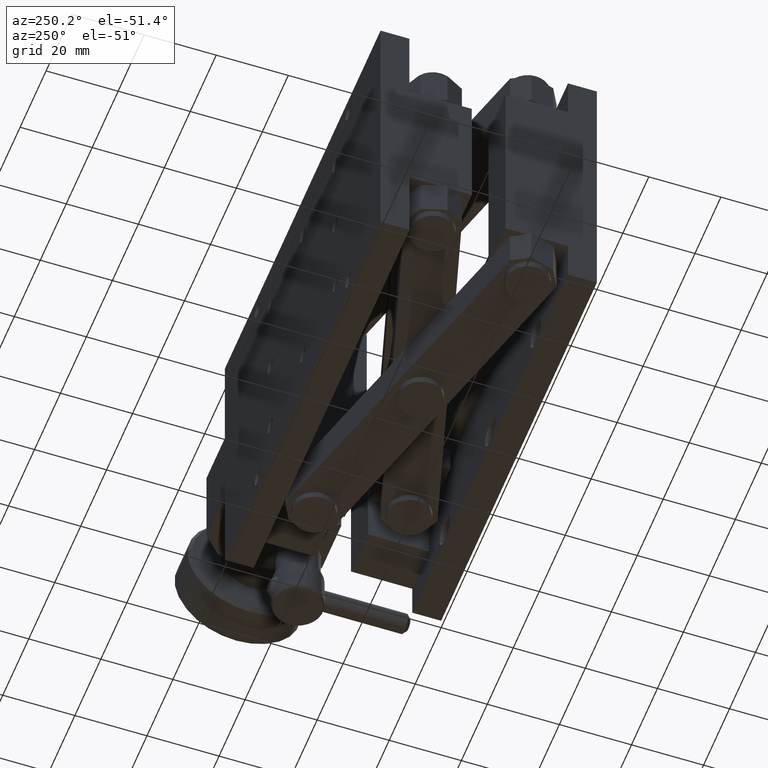
[diagram: clean part render]
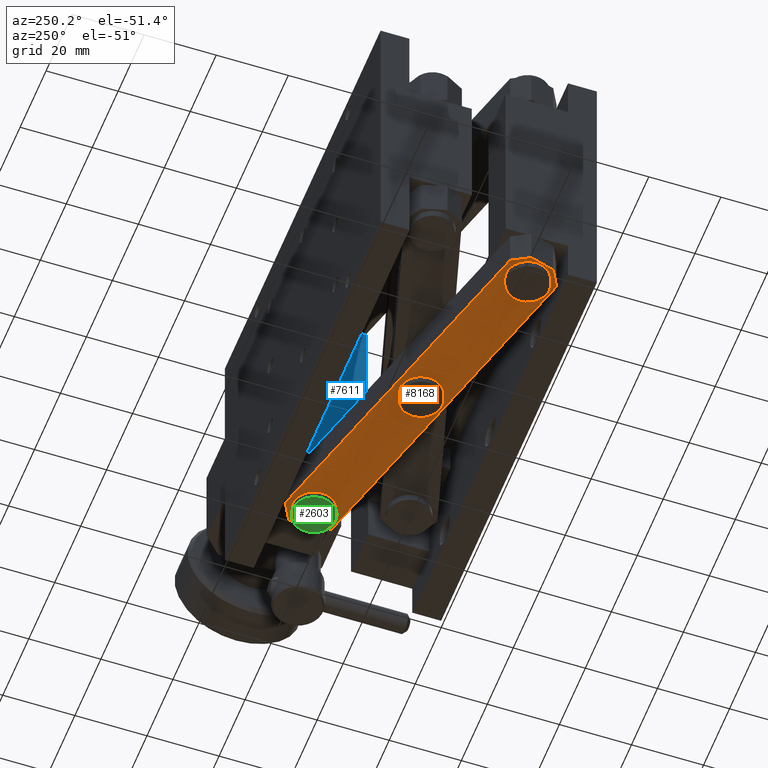
[diagram: same view with three faces highlighted in distinct colors, each labeled with its STEP entity id]
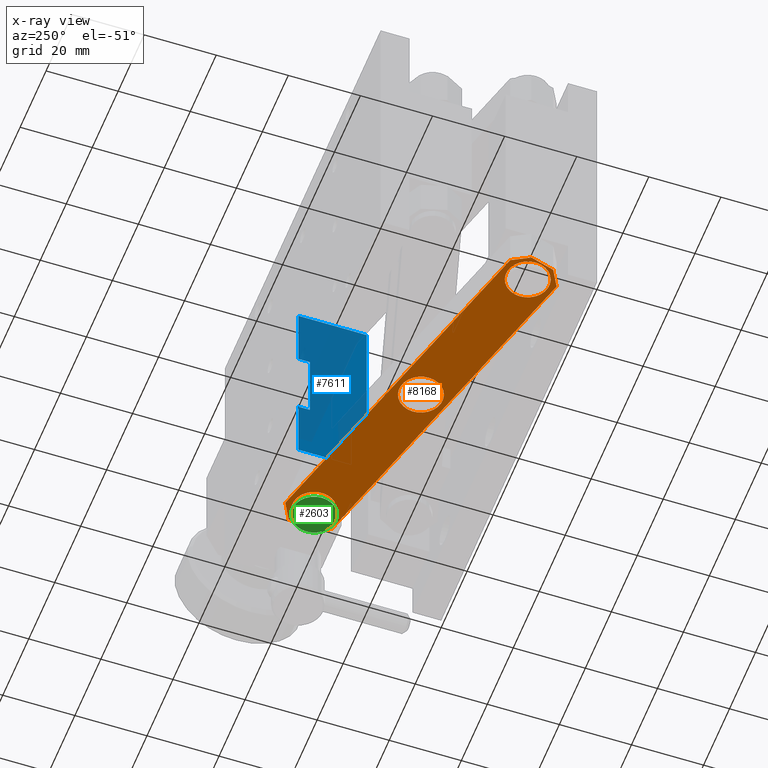
[diagram: x-ray of the same camera — body ghosted, the three highlighted faces saturated]
A machine part, auxiliary view with three faces highlighted in distinct colors.
The next image is the same camera in x-ray (body ghosted, the three faces saturated) — at least one of them is partly hidden behind the body in this view.
Their STEP definitions:

[orange] entity #8168 — the highlighted planar face has unit normal (0, 0, -1).
#65 = EDGE_CURVE ( 'NONE', #6038, #6552, #2861, .T. ) ;
#73 = DIRECTION ( 'NONE',  ( -0.8756970255360277955, 0.4828609732286854861, -0.000000000000000000 ) ) ;
#150 = DIRECTION ( 'NONE',  ( 0.9606455735617540626, 0.2777770364810749348, 0.000000000000000000 ) ) ;
#392 = VERTEX_POINT ( 'NONE', #5794 ) ;
#507 = EDGE_LOOP ( 'NONE', ( #4557, #8715 ) ) ;
#524 = CARTESIAN_POINT ( 'NONE',  ( 98.21804147160581522, 51.09921394007719186, -38.00000000000000000 ) ) ;
#639 = AXIS2_PLACEMENT_3D ( 'NONE', #3163, #8033, #2470 ) ;
#748 = DIRECTION ( 'NONE',  ( 0.9606455735617540626, 0.2777770364810750459, 0.000000000000000000 ) ) ;
#853 = ORIENTED_EDGE ( 'NONE', *, *, #2366, .F. ) ;
#925 = LINE ( 'NONE', #7113, #7861 ) ;
#1115 = CIRCLE ( 'NONE', #6676, 6.000000000000001776 ) ;
#1128 = ORIENTED_EDGE ( 'NONE', *, *, #3370, .F. ) ;
#1181 = EDGE_CURVE ( 'NONE', #1751, #4555, #7410, .T. ) ;
#1211 = CARTESIAN_POINT ( 'NONE',  ( 97.89975531130950515, 43.19992954716135358, -38.00000000000000000 ) ) ;
#1231 = CIRCLE ( 'NONE', #6339, 6.000000000000001776 ) ;
#1398 = VERTEX_POINT ( 'NONE', #5003 ) ;
#1454 = CARTESIAN_POINT ( 'NONE',  ( 2.115058292487953295, 23.31039921051045027, -38.00000000000000000 ) ) ;
#1458 = ORIENTED_EDGE ( 'NONE', *, *, #4120, .T. ) ;
#1564 = EDGE_LOOP ( 'NONE', ( #7136, #1458, #2040, #5474, #6852, #5024, #8167, #3234 ) ) ;
#1694 = AXIS2_PLACEMENT_3D ( 'NONE', #1211, #7115, #150 ) ;
#1724 = EDGE_LOOP ( 'NONE', ( #6811, #853 ) ) ;
#1751 = VERTEX_POINT ( 'NONE', #6371 ) ;
#1841 = VERTEX_POINT ( 'NONE', #8386 ) ;
#1926 = EDGE_CURVE ( 'NONE', #6780, #7243, #3649, .T. ) ;
#1996 = EDGE_CURVE ( 'NONE', #6026, #8983, #9004, .T. ) ;
#2040 = ORIENTED_EDGE ( 'NONE', *, *, #1926, .T. ) ;
#2082 = VECTOR ( 'NONE', #6766, 1000.000000000000114 ) ;
#2118 = FACE_BOUND ( 'NONE', #5535, .T. ) ;
#2180 = CARTESIAN_POINT ( 'NONE',  ( 103.1717319117771297, 48.36773979175448090, -38.00000000000000000 ) ) ;
#2251 = VECTOR ( 'NONE', #7614, 1000.000000000000114 ) ;
#2299 = FACE_OUTER_BOUND ( 'NONE', #1564, .T. ) ;
#2311 = DIRECTION ( 'NONE',  ( 0.000000000000000000, 0.000000000000000000, -1.000000000000000000 ) ) ;
#2366 = EDGE_CURVE ( 'NONE', #2703, #1398, #2851, .T. ) ;
#2470 = DIRECTION ( 'NONE',  ( 0.9606455735617540626, 0.2777770364810750459, 0.000000000000000000 ) ) ;
#2506 = DIRECTION ( 'NONE',  ( 0.000000000000000000, 0.000000000000000000, -1.000000000000000000 ) ) ;
#2559 = DIRECTION ( 'NONE',  ( 0.9606455735617540626, 0.2777770364810749348, 0.000000000000000000 ) ) ;
#2657 = LINE ( 'NONE', #524, #2251 ) ;
#2703 = VERTEX_POINT ( 'NONE', #3361 ) ;
#2817 = DIRECTION ( 'NONE',  ( 0.9606455735617540626, 0.2777770364810750459, 0.000000000000000000 ) ) ;
#2851 = CIRCLE ( 'NONE', #6222, 6.000000000000001776 ) ;
#2861 = LINE ( 'NONE', #3778, #5945 ) ;
#2985 = FACE_BOUND ( 'NONE', #1724, .T. ) ;
#3126 = VECTOR ( 'NONE', #6454, 1000.000000000000114 ) ;
#3127 = EDGE_CURVE ( 'NONE', #1841, #392, #5798, .T. ) ;
#3163 = CARTESIAN_POINT ( 'NONE',  ( 6.600000000000400213, 16.79999999999999005, -38.00000000000000000 ) ) ;
#3234 = ORIENTED_EDGE ( 'NONE', *, *, #8763, .T. ) ;
#3295 = CARTESIAN_POINT ( 'NONE',  ( 97.89975531130950515, 43.19992954716135358, -38.00000000000000000 ) ) ;
#3361 = CARTESIAN_POINT ( 'NONE',  ( 58.01375109702547661, 31.66662699246711909, -38.00000000000000000 ) ) ;
#3370 = EDGE_CURVE ( 'NONE', #392, #1841, #1115, .T. ) ;
#3524 = EDGE_CURVE ( 'NONE', #7167, #1751, #6272, .T. ) ;
#3599 = CARTESIAN_POINT ( 'NONE',  ( 6.281713839704078595, 8.900715607084144665, -38.00000000000000000 ) ) ;
#3649 = LINE ( 'NONE', #7183, #3126 ) ;
#3729 = CARTESIAN_POINT ( 'NONE',  ( 2.115058292487953295, 23.31039921051045027, -38.00000000000000000 ) ) ;
#3778 = CARTESIAN_POINT ( 'NONE',  ( 6.281713839704078595, 8.900715607084144665, -38.00000000000000000 ) ) ;
#3798 = CARTESIAN_POINT ( 'NONE',  ( 12.36387344137092370, 18.46666221888643733, -38.00000000000000000 ) ) ;
#4015 = VECTOR ( 'NONE', #2817, 1000.000000000000114 ) ;
#4120 = EDGE_CURVE ( 'NONE', #6552, #6780, #925, .T. ) ;
#4418 = DIRECTION ( 'NONE',  ( 0.000000000000000000, 0.000000000000000000, -1.000000000000000000 ) ) ;
#4555 = VERTEX_POINT ( 'NONE', #7184 ) ;
#4557 = ORIENTED_EDGE ( 'NONE', *, *, #6918, .F. ) ;
#4681 = DIRECTION ( 'NONE',  ( -0.9606455735617540626, -0.2777770364810750459, 0.000000000000000000 ) ) ;
#4849 = CARTESIAN_POINT ( 'NONE',  ( 103.1717319117771297, 48.36773979175448090, -38.00000000000000000 ) ) ;
#5003 = CARTESIAN_POINT ( 'NONE',  ( 46.48600421428442075, 28.33330255469421743, -38.00000000000000000 ) ) ;
#5024 = ORIENTED_EDGE ( 'NONE', *, *, #3524, .T. ) ;
#5039 = CIRCLE ( 'NONE', #639, 5.999999999999999112 ) ;
#5107 = PLANE ( 'NONE',  #8126 ) ;
#5309 = DIRECTION ( 'NONE',  ( 0.9606455735617540626, 0.2777770364810750459, 0.000000000000000000 ) ) ;
#5474 = ORIENTED_EDGE ( 'NONE', *, *, #7588, .T. ) ;
#5519 = VERTEX_POINT ( 'NONE', #5937 ) ;
#5535 = EDGE_LOOP ( 'NONE', ( #1128, #8164 ) ) ;
#5794 = CARTESIAN_POINT ( 'NONE',  ( 92.13588186993898432, 41.53326732827490275, -38.00000000000000000 ) ) ;
#5796 = FACE_BOUND ( 'NONE', #507, .T. ) ;
#5798 = CIRCLE ( 'NONE', #1694, 6.000000000000001776 ) ;
#5882 = CARTESIAN_POINT ( 'NONE',  ( 1.328023399532762605, 11.63218975540685918, -38.00000000000000000 ) ) ;
#5937 = CARTESIAN_POINT ( 'NONE',  ( 98.21804147160581522, 51.09921394007719186, -38.00000000000000000 ) ) ;
#5945 = VECTOR ( 'NONE', #73, 1000.000000000000114 ) ;
#6026 = VERTEX_POINT ( 'NONE', #3798 ) ;
#6038 = VERTEX_POINT ( 'NONE', #3599 ) ;
#6222 = AXIS2_PLACEMENT_3D ( 'NONE', #8503, #2311, #8642 ) ;
#6272 = LINE ( 'NONE', #4849, #7414 ) ;
#6339 = AXIS2_PLACEMENT_3D ( 'NONE', #7261, #7734, #6954 ) ;
#6371 = CARTESIAN_POINT ( 'NONE',  ( 105.1161711671446568, 41.64322077682220424, -38.00000000000000000 ) ) ;
#6413 = DIRECTION ( 'NONE',  ( 0.000000000000000000, 0.000000000000000000, -1.000000000000000000 ) ) ;
#6454 = DIRECTION ( 'NONE',  ( 0.4828609732286854861, 0.8756970255360277955, 0.000000000000000000 ) ) ;
#6552 = VERTEX_POINT ( 'NONE', #5882 ) ;
#6676 = AXIS2_PLACEMENT_3D ( 'NONE', #3295, #2506, #2559 ) ;
#6766 = DIRECTION ( 'NONE',  ( -0.4828609732286860967, -0.8756970255360275734, 0.000000000000000000 ) ) ;
#6780 = VERTEX_POINT ( 'NONE', #7802 ) ;
#6811 = ORIENTED_EDGE ( 'NONE', *, *, #7597, .F. ) ;
#6852 = ORIENTED_EDGE ( 'NONE', *, *, #8333, .T. ) ;
#6873 = LINE ( 'NONE', #8301, #7319 ) ;
#6918 = EDGE_CURVE ( 'NONE', #8983, #6026, #5039, .T. ) ;
#6954 = DIRECTION ( 'NONE',  ( 0.9606455735617540626, 0.2777770364810749348, 0.000000000000000000 ) ) ;
#7100 = CARTESIAN_POINT ( 'NONE',  ( 6.600000000000400213, 16.79999999999999005, -38.00000000000000000 ) ) ;
#7113 = CARTESIAN_POINT ( 'NONE',  ( 1.328023399532762605, 11.63218975540685918, -38.00000000000000000 ) ) ;
#7115 = DIRECTION ( 'NONE',  ( 0.000000000000000000, 0.000000000000000000, -1.000000000000000000 ) ) ;
#7136 = ORIENTED_EDGE ( 'NONE', *, *, #65, .T. ) ;
#7167 = VERTEX_POINT ( 'NONE', #2180 ) ;
#7180 = CARTESIAN_POINT ( 'NONE',  ( 0.8361265586298753938, 15.13333778111353922, -38.00000000000000000 ) ) ;
#7183 = CARTESIAN_POINT ( 'NONE',  ( -0.6164158558347624384, 18.35670877033913939, -38.00000000000000000 ) ) ;
#7184 = CARTESIAN_POINT ( 'NONE',  ( 102.3846970188219387, 36.68953033665088270, -38.00000000000000000 ) ) ;
#7243 = VERTEX_POINT ( 'NONE', #1454 ) ;
#7261 = CARTESIAN_POINT ( 'NONE',  ( 52.24987765565494868, 29.99996477358066826, -38.00000000000000000 ) ) ;
#7319 = VECTOR ( 'NONE', #4681, 1000.000000000000114 ) ;
#7410 = LINE ( 'NONE', #7965, #2082 ) ;
#7414 = VECTOR ( 'NONE', #9029, 1000.000000000000114 ) ;
#7588 = EDGE_CURVE ( 'NONE', #7243, #5519, #8589, .T. ) ;
#7597 = EDGE_CURVE ( 'NONE', #1398, #2703, #1231, .T. ) ;
#7614 = DIRECTION ( 'NONE',  ( 0.8756970255360281286, -0.4828609732286849310, 0.000000000000000000 ) ) ;
#7734 = DIRECTION ( 'NONE',  ( 0.000000000000000000, 0.000000000000000000, -1.000000000000000000 ) ) ;
#7802 = CARTESIAN_POINT ( 'NONE',  ( -0.6164158558347624384, 18.35670877033913939, -38.00000000000000000 ) ) ;
#7861 = VECTOR ( 'NONE', #8622, 1000.000000000000114 ) ;
#7902 = CARTESIAN_POINT ( 'NONE',  ( 0.3558037718489999723, 14.99444926287299928, -38.00000000000000000 ) ) ;
#7965 = CARTESIAN_POINT ( 'NONE',  ( 105.1161711671446568, 41.64322077682220424, -38.00000000000000000 ) ) ;
#8033 = DIRECTION ( 'NONE',  ( 0.000000000000000000, 0.000000000000000000, -1.000000000000000000 ) ) ;
#8126 = AXIS2_PLACEMENT_3D ( 'NONE', #7902, #4418, #748 ) ;
#8127 = AXIS2_PLACEMENT_3D ( 'NONE', #7100, #6413, #5309 ) ;
#8164 = ORIENTED_EDGE ( 'NONE', *, *, #3127, .F. ) ;
#8167 = ORIENTED_EDGE ( 'NONE', *, *, #1181, .T. ) ;
#8168 = ADVANCED_FACE ( 'NONE', ( #2118, #2985, #5796, #2299 ), #5107, .T. ) ;
#8301 = CARTESIAN_POINT ( 'NONE',  ( 102.3846970188219387, 36.68953033665088270, -38.00000000000000000 ) ) ;
#8333 = EDGE_CURVE ( 'NONE', #5519, #7167, #2657, .T. ) ;
#8386 = CARTESIAN_POINT ( 'NONE',  ( 103.6636287526800402, 44.86659176604780441, -38.00000000000000000 ) ) ;
#8503 = CARTESIAN_POINT ( 'NONE',  ( 52.24987765565494868, 29.99996477358066826, -38.00000000000000000 ) ) ;
#8589 = LINE ( 'NONE', #3729, #4015 ) ;
#8622 = DIRECTION ( 'NONE',  ( -0.2777770364810750459, 0.9606455735617540626, 0.000000000000000000 ) ) ;
#8642 = DIRECTION ( 'NONE',  ( 0.9606455735617540626, 0.2777770364810749348, 0.000000000000000000 ) ) ;
#8715 = ORIENTED_EDGE ( 'NONE', *, *, #1996, .F. ) ;
#8763 = EDGE_CURVE ( 'NONE', #4555, #6038, #6873, .T. ) ;
#8983 = VERTEX_POINT ( 'NONE', #7180 ) ;
#9004 = CIRCLE ( 'NONE', #8127, 5.999999999999999112 ) ;
#9029 = DIRECTION ( 'NONE',  ( 0.2777770364810750459, -0.9606455735617540626, 0.000000000000000000 ) ) ;

[blue] entity #7611 — the highlighted planar face has unit normal (1, 0, 0).
#25 = EDGE_CURVE ( 'NONE', #661, #610, #2899, .T. ) ;
#32 = CARTESIAN_POINT ( 'NONE',  ( 87.90000000000000568, 47.99992954716100257, -10.00000000000000000 ) ) ;
#118 = LINE ( 'NONE', #5711, #4575 ) ;
#144 = EDGE_CURVE ( 'NONE', #1302, #996, #4613, .T. ) ;
#610 = VERTEX_POINT ( 'NONE', #3171 ) ;
#661 = VERTEX_POINT ( 'NONE', #1972 ) ;
#745 = ORIENTED_EDGE ( 'NONE', *, *, #5074, .F. ) ;
#798 = EDGE_CURVE ( 'NONE', #5462, #661, #3308, .T. ) ;
#965 = CARTESIAN_POINT ( 'NONE',  ( 87.90000000000000568, 47.99992954716100257, -10.00000000000000000 ) ) ;
#982 = FACE_OUTER_BOUND ( 'NONE', #7667, .T. ) ;
#996 = VERTEX_POINT ( 'NONE', #965 ) ;
#1302 = VERTEX_POINT ( 'NONE', #1464 ) ;
#1364 = ORIENTED_EDGE ( 'NONE', *, *, #5411, .F. ) ;
#1367 = VECTOR ( 'NONE', #2549, 1000.000000000000000 ) ;
#1464 = CARTESIAN_POINT ( 'NONE',  ( 87.90000000000000568, 51.19992954716100542, -10.00000000000000000 ) ) ;
#1493 = LINE ( 'NONE', #4307, #7634 ) ;
#1919 = VERTEX_POINT ( 'NONE', #2181 ) ;
#1972 = CARTESIAN_POINT ( 'NONE',  ( 87.90000000000000568, 51.19992954716100542, 10.00000000000000000 ) ) ;
#2144 = CARTESIAN_POINT ( 'NONE',  ( 87.90000000000000568, 32.19992954716099831, -28.00000000000000000 ) ) ;
#2181 = CARTESIAN_POINT ( 'NONE',  ( 87.90000000000000568, 51.19992954716100542, -28.00000000000000000 ) ) ;
#2302 = DIRECTION ( 'NONE',  ( 1.000000000000000000, 0.000000000000000000, 0.000000000000000000 ) ) ;
#2314 = DIRECTION ( 'NONE',  ( 0.000000000000000000, 1.000000000000000000, 0.000000000000000000 ) ) ;
#2513 = VECTOR ( 'NONE', #2314, 1000.000000000000000 ) ;
#2549 = DIRECTION ( 'NONE',  ( 0.000000000000000000, -1.000000000000000000, 0.000000000000000000 ) ) ;
#2653 = ORIENTED_EDGE ( 'NONE', *, *, #4995, .F. ) ;
#2809 = DIRECTION ( 'NONE',  ( 0.000000000000000000, 0.000000000000000000, -1.000000000000000000 ) ) ;
#2812 = ORIENTED_EDGE ( 'NONE', *, *, #798, .F. ) ;
#2899 = LINE ( 'NONE', #4424, #3453 ) ;
#3077 = CARTESIAN_POINT ( 'NONE',  ( 87.90000000000000568, 1.499929547160999910, 0.000000000000000000 ) ) ;
#3171 = CARTESIAN_POINT ( 'NONE',  ( 87.90000000000000568, 51.19992954716100542, 28.00000000000000000 ) ) ;
#3188 = DIRECTION ( 'NONE',  ( 0.000000000000000000, 0.000000000000000000, 1.000000000000000000 ) ) ;
#3308 = LINE ( 'NONE', #8913, #4433 ) ;
#3408 = ORIENTED_EDGE ( 'NONE', *, *, #5019, .F. ) ;
#3453 = VECTOR ( 'NONE', #6485, 1000.000000000000000 ) ;
#3717 = VERTEX_POINT ( 'NONE', #5722 ) ;
#4132 = VECTOR ( 'NONE', #3188, 1000.000000000000000 ) ;
#4307 = CARTESIAN_POINT ( 'NONE',  ( 87.90000000000000568, 51.19992954716100542, -28.00000000000000000 ) ) ;
#4424 = CARTESIAN_POINT ( 'NONE',  ( 87.90000000000000568, 51.19992954716100542, 10.00000000000000000 ) ) ;
#4433 = VECTOR ( 'NONE', #6153, 1000.000000000000000 ) ;
#4509 = VERTEX_POINT ( 'NONE', #2144 ) ;
#4575 = VECTOR ( 'NONE', #2809, 1000.000000000000000 ) ;
#4613 = LINE ( 'NONE', #5391, #8586 ) ;
#4995 = EDGE_CURVE ( 'NONE', #1919, #1302, #1493, .T. ) ;
#5019 = EDGE_CURVE ( 'NONE', #996, #5462, #6311, .T. ) ;
#5074 = EDGE_CURVE ( 'NONE', #4509, #1919, #8104, .T. ) ;
#5180 = ORIENTED_EDGE ( 'NONE', *, *, #7906, .F. ) ;
#5304 = LINE ( 'NONE', #8889, #1367 ) ;
#5391 = CARTESIAN_POINT ( 'NONE',  ( 87.90000000000000568, 51.19992954716100542, -10.00000000000000000 ) ) ;
#5411 = EDGE_CURVE ( 'NONE', #3717, #4509, #118, .T. ) ;
#5462 = VERTEX_POINT ( 'NONE', #7772 ) ;
#5533 = ORIENTED_EDGE ( 'NONE', *, *, #144, .F. ) ;
#5630 = ORIENTED_EDGE ( 'NONE', *, *, #25, .F. ) ;
#5711 = CARTESIAN_POINT ( 'NONE',  ( 87.90000000000000568, 32.19992954716099831, 28.00000000000000000 ) ) ;
#5722 = CARTESIAN_POINT ( 'NONE',  ( 87.90000000000000568, 32.19992954716099831, 28.00000000000000000 ) ) ;
#5800 = DIRECTION ( 'NONE',  ( 0.000000000000000000, 1.000000000000000000, 0.000000000000000000 ) ) ;
#6153 = DIRECTION ( 'NONE',  ( 0.000000000000000000, 1.000000000000000000, 0.000000000000000000 ) ) ;
#6311 = LINE ( 'NONE', #32, #4132 ) ;
#6479 = PLANE ( 'NONE',  #7516 ) ;
#6485 = DIRECTION ( 'NONE',  ( 0.000000000000000000, 0.000000000000000000, 1.000000000000000000 ) ) ;
#6718 = DIRECTION ( 'NONE',  ( 0.000000000000000000, -1.000000000000000000, 0.000000000000000000 ) ) ;
#7516 = AXIS2_PLACEMENT_3D ( 'NONE', #3077, #2302, #5800 ) ;
#7611 = ADVANCED_FACE ( 'NONE', ( #982 ), #6479, .F. ) ;
#7634 = VECTOR ( 'NONE', #7694, 1000.000000000000000 ) ;
#7667 = EDGE_LOOP ( 'NONE', ( #5180, #5630, #2812, #3408, #5533, #2653, #745, #1364 ) ) ;
#7694 = DIRECTION ( 'NONE',  ( 0.000000000000000000, 0.000000000000000000, 1.000000000000000000 ) ) ;
#7772 = CARTESIAN_POINT ( 'NONE',  ( 87.90000000000000568, 47.99992954716100257, 10.00000000000000000 ) ) ;
#7906 = EDGE_CURVE ( 'NONE', #610, #3717, #5304, .T. ) ;
#8104 = LINE ( 'NONE', #8605, #2513 ) ;
#8586 = VECTOR ( 'NONE', #6718, 1000.000000000000000 ) ;
#8605 = CARTESIAN_POINT ( 'NONE',  ( 87.90000000000000568, 32.19992954716099831, -28.00000000000000000 ) ) ;
#8889 = CARTESIAN_POINT ( 'NONE',  ( 87.90000000000000568, 51.19992954716100542, 28.00000000000000000 ) ) ;
#8913 = CARTESIAN_POINT ( 'NONE',  ( 87.90000000000000568, 47.99992954716100257, 10.00000000000000000 ) ) ;

[green] entity #2603 — the highlighted planar face has unit normal (0, 0, 1).
#473 = EDGE_CURVE ( 'NONE', #6772, #3347, #7122, .T. ) ;
#731 = DIRECTION ( 'NONE',  ( 1.000000000000000000, 0.000000000000000000, 0.000000000000000000 ) ) ;
#762 = AXIS2_PLACEMENT_3D ( 'NONE', #8489, #5658, #7067 ) ;
#1233 = AXIS2_PLACEMENT_3D ( 'NONE', #8993, #4092, #731 ) ;
#1424 = CARTESIAN_POINT ( 'NONE',  ( 91.89999999999999147, 43.19992954716100542, -40.00000000000000000 ) ) ;
#1467 = ORIENTED_EDGE ( 'NONE', *, *, #473, .F. ) ;
#1749 = EDGE_CURVE ( 'NONE', #3347, #6772, #4313, .T. ) ;
#2603 = ADVANCED_FACE ( 'NONE', ( #5564 ), #4756, .F. ) ;
#3347 = VERTEX_POINT ( 'NONE', #8207 ) ;
#3433 = ORIENTED_EDGE ( 'NONE', *, *, #1749, .F. ) ;
#4092 = DIRECTION ( 'NONE',  ( 0.000000000000000000, 0.000000000000000000, 1.000000000000000000 ) ) ;
#4200 = DIRECTION ( 'NONE',  ( 0.000000000000000000, 0.000000000000000000, 1.000000000000000000 ) ) ;
#4313 = CIRCLE ( 'NONE', #1233, 6.000000000000005329 ) ;
#4756 = PLANE ( 'NONE',  #6369 ) ;
#5564 = FACE_OUTER_BOUND ( 'NONE', #8788, .T. ) ;
#5658 = DIRECTION ( 'NONE',  ( 0.000000000000000000, 0.000000000000000000, 1.000000000000000000 ) ) ;
#6369 = AXIS2_PLACEMENT_3D ( 'NONE', #7590, #4200, #8969 ) ;
#6772 = VERTEX_POINT ( 'NONE', #1424 ) ;
#7067 = DIRECTION ( 'NONE',  ( 1.000000000000000000, 0.000000000000000000, 0.000000000000000000 ) ) ;
#7122 = CIRCLE ( 'NONE', #762, 6.000000000000005329 ) ;
#7590 = CARTESIAN_POINT ( 'NONE',  ( 97.90000000000000568, 43.19992954716100542, -40.00000000000000000 ) ) ;
#8207 = CARTESIAN_POINT ( 'NONE',  ( 103.9000000000000057, 43.19992954716100542, -40.00000000000000000 ) ) ;
#8489 = CARTESIAN_POINT ( 'NONE',  ( 97.90000000000000568, 43.19992954716100542, -40.00000000000000000 ) ) ;
#8788 = EDGE_LOOP ( 'NONE', ( #3433, #1467 ) ) ;
#8969 = DIRECTION ( 'NONE',  ( 1.000000000000000000, 0.000000000000000000, 0.000000000000000000 ) ) ;
#8993 = CARTESIAN_POINT ( 'NONE',  ( 97.90000000000000568, 43.19992954716100542, -40.00000000000000000 ) ) ;